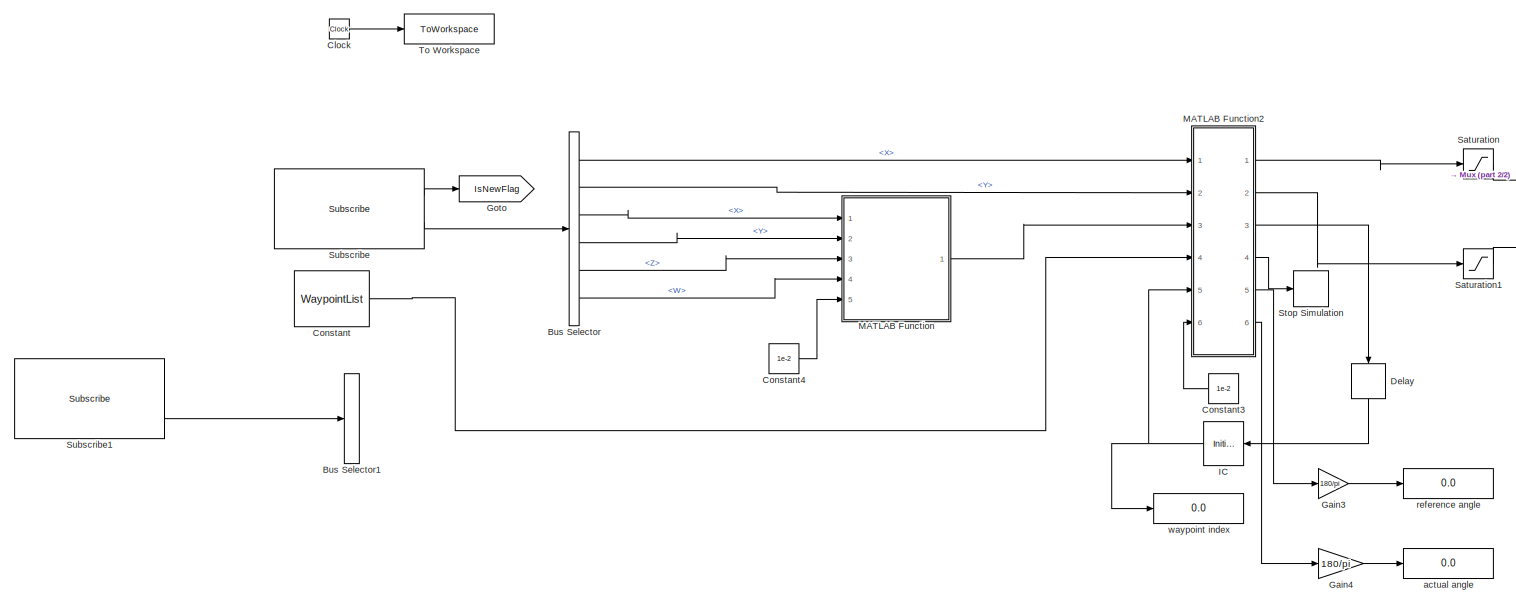
[diagram: root canvas - part 1/2, left side, full height]
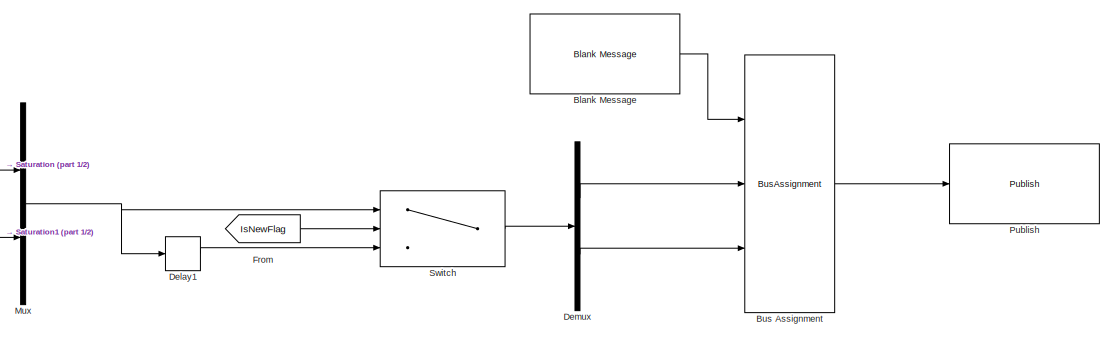
[diagram: root canvas - part 2/2, top right region]
MODEL slx_455e923f586d
KIND model
CONFIG AbsTol = auto
CONFIG EnableMultiTasking = off
CONFIG FixedStep = 0.01
CONFIG MaxStep = auto
CONFIG MinStep = auto
CONFIG RelTol = 1e-3
CONFIG SampleTimeConstraint = Unconstrained
CONFIG SolverName = FixedStepAuto
CONFIG StartTime = 0.0
CONFIG StopTime = inf
BLOCK [Reference] Blank Message  REF=robotlib/Blank Message
  Ports = [0, 1]
  SourceBlock = robotlib/Blank Message
  SourceProductBaseCode = RR
  SourceType = ROS Blank Message
BLOCK [BusAssignment] Bus Assignment
  AssignedSignals = Linear.X,Angular.Z
  Ports = [3, 1]
BLOCK [BusSelector] Bus Selector
  OutputSignals = Pose.Pose.Position.X,Pose.Pose.Position.Y,Pose.Pose.Orientation.X,Pose.Pose.Orientation.Y,Pose.Pose.Orientation.Z,Pose.Pose.Orientation.W
  Ports = [1, 6]
BLOCK [BusSelector] Bus Selector1
  Commented = on
  OutputSignals = Covariance
  Ports = [1, 1]
BLOCK [Clock] Clock
BLOCK [Constant] Constant
  Value = WaypointList
BLOCK [Constant] Constant3
  NameLocation = top
  Value = 1e-2
BLOCK [Constant] Constant4
  Value = 1e-2
BLOCK [Delay] Delay
  DelayLength = 1
  InputPortMap = u0
  NameLocation = left
  Ports = [1, 1]
BLOCK [Delay] Delay1
  DelayLength = 1
  InputPortMap = u0
  Ports = [1, 1]
BLOCK [Demux] Demux
  Outputs = 2
  Ports = [1, 2]
BLOCK [From] From
  GotoTag = IsNewFlag
BLOCK [Gain] Gain3
  Gain = 180/pi
BLOCK [Gain] Gain4
  Gain = 180/pi
BLOCK [Goto] Goto
  GotoTag = IsNewFlag
BLOCK [InitialCondition] IC
  NameLocation = top
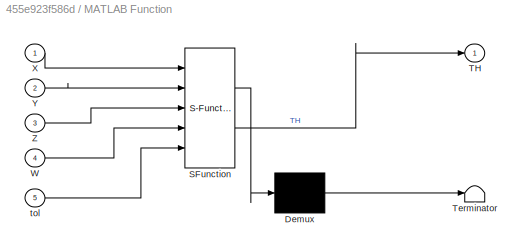
BLOCK [SubSystem] MATLAB Function
  ErrorFcn = Stateflow.Translate.translate
  PermitHierarchicalResolution = ExplicitOnly
  Ports = [5, 1]
  RequestExecContextInheritance = off
  SFBlockType = MATLAB Function
  TreatAsAtomicUnit = on
BLOCK [Demux] MATLAB Function/ Demux 
  Outputs = 1
  Ports = [1, 1]
BLOCK [S-Function] MATLAB Function/ SFunction 
  EnableBusSupport = on
  FunctionName = sf_sfun
  PortCounts = [5 2]
  Ports = [5, 2]
  SFcnIsStateOwnerBlock = off
  SFunctionDeploymentMode = off
  Tag = Stateflow S-Function 2
BLOCK [Terminator] MATLAB Function/ Terminator 
BLOCK [Outport] MATLAB Function/TH
BLOCK [Inport] MATLAB Function/W
  Port = 4
BLOCK [Inport] MATLAB Function/X
BLOCK [Inport] MATLAB Function/Y
  Port = 2
BLOCK [Inport] MATLAB Function/Z
  Port = 3
BLOCK [Inport] MATLAB Function/tol
  Port = 5
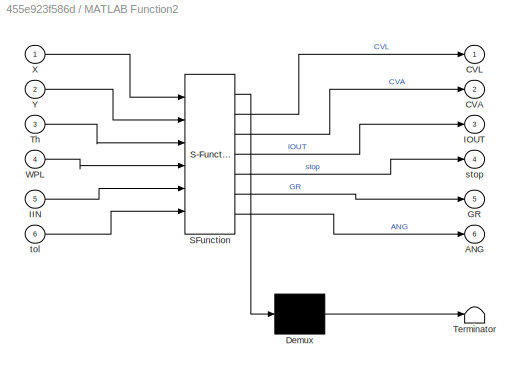
BLOCK [SubSystem] MATLAB Function2
  ErrorFcn = Stateflow.Translate.translate
  PermitHierarchicalResolution = ExplicitOnly
  Ports = [6, 6]
  RequestExecContextInheritance = off
  SFBlockType = MATLAB Function
  TreatAsAtomicUnit = on
BLOCK [Demux] MATLAB Function2/ Demux 
  Outputs = 1
  Ports = [1, 1]
BLOCK [S-Function] MATLAB Function2/ SFunction 
  EnableBusSupport = on
  FunctionName = sf_sfun
  PortCounts = [6 7]
  Ports = [6, 7]
  SFcnIsStateOwnerBlock = off
  SFunctionDeploymentMode = off
  Tag = Stateflow S-Function 3
BLOCK [Terminator] MATLAB Function2/ Terminator 
BLOCK [Outport] MATLAB Function2/ANG
  Port = 6
BLOCK [Outport] MATLAB Function2/CVA
  Port = 2
BLOCK [Outport] MATLAB Function2/CVL
BLOCK [Outport] MATLAB Function2/GR
  Port = 5
BLOCK [Inport] MATLAB Function2/IIN
  Port = 5
BLOCK [Outport] MATLAB Function2/IOUT
  Port = 3
BLOCK [Inport] MATLAB Function2/Th
  Port = 3
BLOCK [Inport] MATLAB Function2/WPL
  Port = 4
BLOCK [Inport] MATLAB Function2/X
BLOCK [Inport] MATLAB Function2/Y
  Port = 2
BLOCK [Outport] MATLAB Function2/stop
  Port = 4
BLOCK [Inport] MATLAB Function2/tol
  Port = 6
BLOCK [Mux] Mux
  DisplayOption = bar
  Inputs = 2
  Ports = [2, 1]
BLOCK [Reference] Publish  REF=robotlib/Publish
  Ports = [1]
  SourceBlock = robotlib/Publish
  SourceProductBaseCode = RR
  SourceType = ROS Publish
BLOCK [Saturate] Saturation
  LowerLimit = -0.2
  UpperLimit = 0.2
BLOCK [Saturate] Saturation1
  LowerLimit = -0.4
  UpperLimit = 0.4
BLOCK [Stop] Stop Simulation
BLOCK [Reference] Subscribe  REF=robotlib/Subscribe
  Ports = [0, 2]
  SourceBlock = robotlib/Subscribe
  SourceProductBaseCode = RR
  SourceType = ROS Subscribe
BLOCK [Reference] Subscribe1  REF=robotlib/Subscribe
  Commented = on
  Ports = [0, 2]
  SourceBlock = robotlib/Subscribe
  SourceProductBaseCode = RR
  SourceType = ROS Subscribe
BLOCK [Switch] Switch
  Criteria = u2 ~= 0
  InputSameDT = off
  SaturateOnIntegerOverflow = off
BLOCK [ToWorkspace] To Workspace
  FixptAsFi = on
  MaxDataPoints = inf
  Ports = [1]
  SampleTime = -1
  VariableName = time
BLOCK [Display] actual angle
  Decimation = 1
  Ports = [1]
BLOCK [Display] reference angle
  Decimation = 1
  Ports = [1]
BLOCK [Display] waypoint index
  Decimation = 1
  Ports = [1]
LINE Blank Message:1 -> Bus Assignment:1
LINE Bus Assignment:1 -> Publish:1
LINE Bus Selector:1 -> MATLAB Function2:1
LINE Bus Selector:2 -> MATLAB Function2:2
LINE Bus Selector:3 -> MATLAB Function:1
LINE Bus Selector:4 -> MATLAB Function:2
LINE Bus Selector:5 -> MATLAB Function:3
LINE Bus Selector:6 -> MATLAB Function:4
LINE Clock:1 -> To Workspace:1
LINE Constant3:1 -> MATLAB Function2:6
LINE Constant4:1 -> MATLAB Function:5
LINE Constant:1 -> MATLAB Function2:4
LINE Delay1:1 -> Switch:3
LINE Delay:1 -> IC:1
LINE Demux:1 -> Bus Assignment:2
LINE Demux:2 -> Bus Assignment:3
LINE From:1 -> Switch:2
LINE Gain3:1 -> reference angle:1
LINE Gain4:1 -> actual angle:1
NET IC:1 -> MATLAB Function2:5, waypoint index:1
LINE MATLAB Function2:1 -> Saturation:1
LINE MATLAB Function2:2 -> Saturation1:1
LINE MATLAB Function2:3 -> Delay:1
LINE MATLAB Function2:4 -> Stop Simulation:1
LINE MATLAB Function2:5 -> Gain3:1
LINE MATLAB Function2:6 -> Gain4:1
LINE MATLAB Function:1 -> MATLAB Function2:3
NET Mux:1 -> Delay1:1, Switch:1
LINE Saturation1:1 -> Mux:2
LINE Saturation:1 -> Mux:1
LINE Subscribe1:2 -> Bus Selector1:1
LINE Subscribe:1 -> Goto:1
LINE Subscribe:2 -> Bus Selector:1
LINE Switch:1 -> Demux:1
note: NET lines group one-source signal fan-out (src -> all destinations, sorted); 1:1 wires keep LINE
CHART MATLAB Function states=1 transitions=1
  STATE_LABEL 'eML_blk_kernel()'
  STATE_LABEL 'SCRIPT:\nfunction TH = fromQuat2Eu(X, Y, Z, W, tol)\n\n\n\nANGLE = quat2eul([W, X, Y, Z]);\n\nTH = ANGLE(1);'
CHART MATLAB Function2 states=1 transitions=1
  STATE_LABEL 'eML_blk_kernel()'
  STATE_LABEL 'SCRIPT:\nfunction [CVL, CVA, IOUT, stop, GR, ANG] = FBRegulator(X, Y, Th, WPL, IIN, tol)\n\n\nkPA = 2;\nif 1\n    POSr = WPL(IIN, :);\nelse\n    POSr = WPL(1 + (IIN - 1)*3: 3 + (IIN - 1)*3); % with this I read the subscriber\nend\n\nXr = POSr(1); Yr = POSr(2); Thr = POSr(3);\n\nif pi < Thr && Thr < 2*pi\n    Thr = Thr - 2*pi;\nend\n\nGr = Thr;\n\nZ = (Xr - X) + 1i*(Yr - Y);\n\ndist = abs(Z);\n\n\nif dist <= 0.1\n\n    if (...<+784ch>'
CHART  states=0 transitions=0
CHART  states=0 transitions=0
